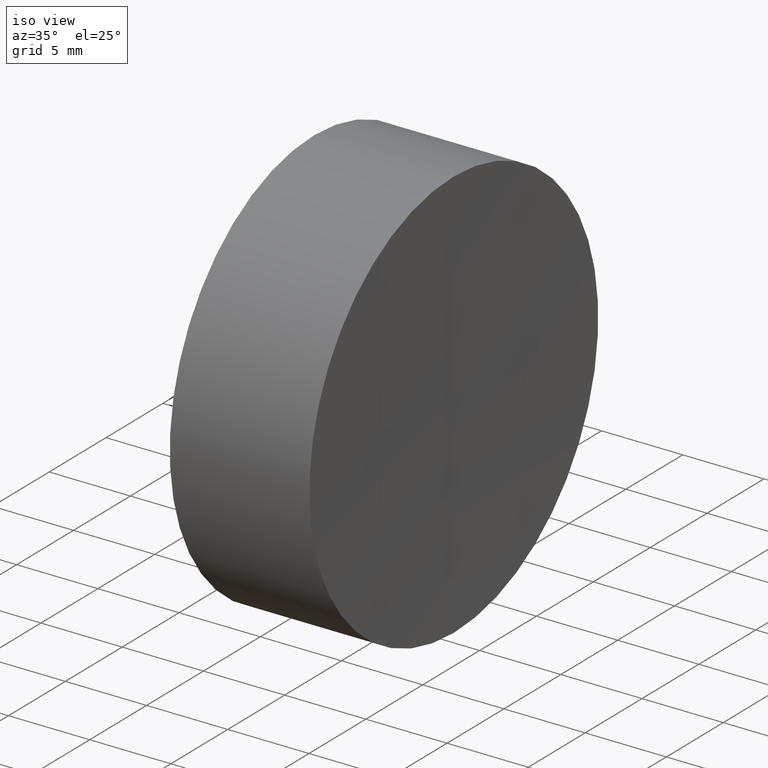
[diagram: clean part render]
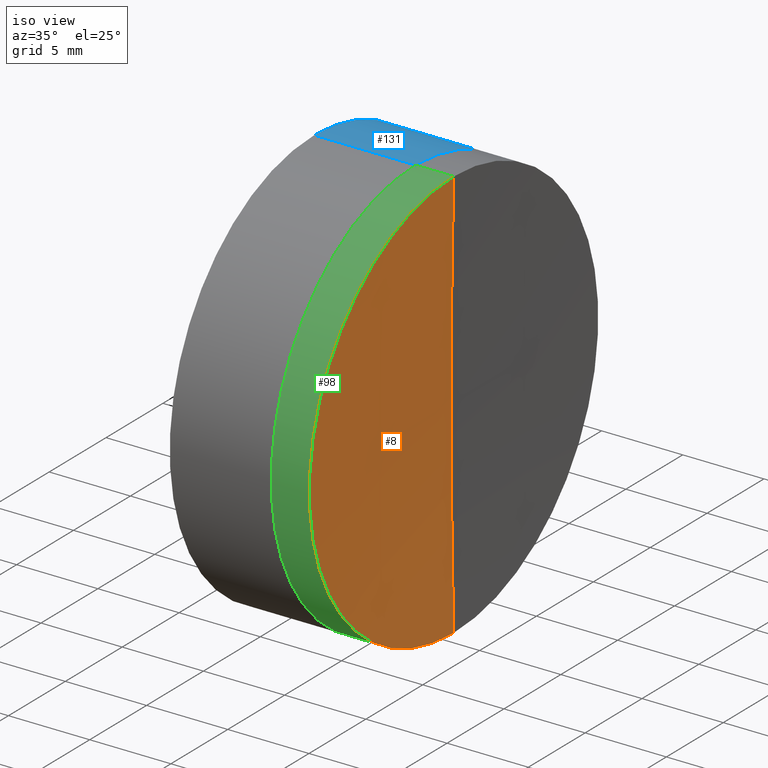
[diagram: same view with three faces highlighted in distinct colors, each labeled with its STEP entity id]
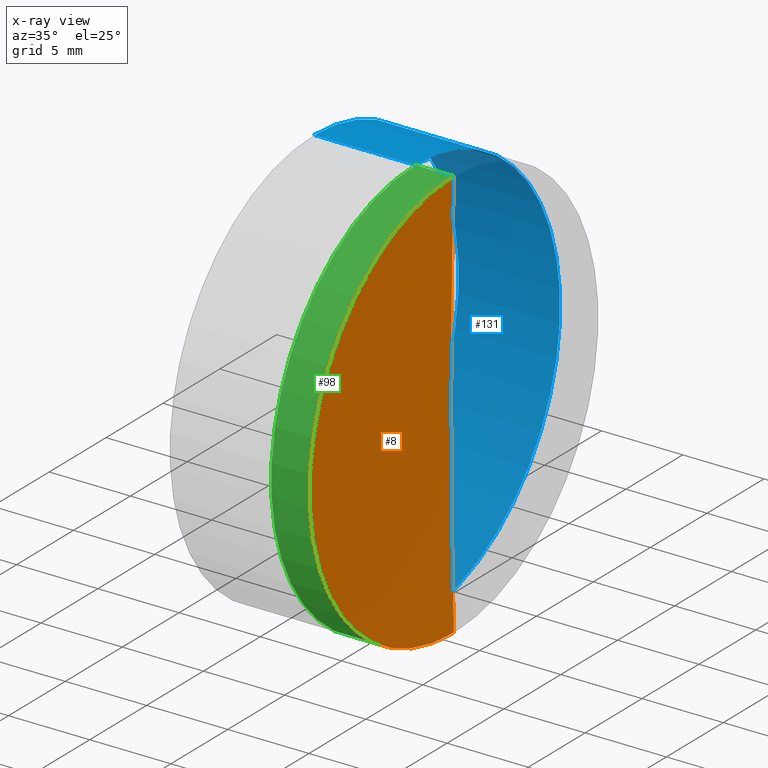
[diagram: x-ray of the same camera — body ghosted, the three highlighted faces saturated]
A machine part, iso view with three faces highlighted in distinct colors.
The next image is the same camera in x-ray (body ghosted, the three faces saturated) — at least one of them is partly hidden behind the body in this view.
Their STEP definitions:

[orange] entity #8 — the highlighted spherical surface has radius 489.8 mm.
#6 = ORIENTED_EDGE ( 'NONE', *, *, #142, .T. ) ;
#8 = ADVANCED_FACE ( 'NONE', ( #127 ), #54, .F. ) ;
#19 = CARTESIAN_POINT ( 'NONE',  ( 263.2472495702499500, 0.0000000000000000000, -2.999160011111868400E-014 ) ) ;
#31 = VERTEX_POINT ( 'NONE', #57 ) ;
#43 = EDGE_CURVE ( 'NONE', #31, #86, #150, .T. ) ;
#53 = DIRECTION ( 'NONE',  ( -0.0000000000000000000, -1.000000000000000000, -0.0000000000000000000 ) ) ;
#54 = SPHERICAL_SURFACE ( 'NONE', #183, 489.8000000000000700 ) ;
#57 = CARTESIAN_POINT ( 'NONE',  ( 263.4119260896008000, 0.0000000000000000000, 12.69999999999999900 ) ) ;
#86 = VERTEX_POINT ( 'NONE', #19 ) ;
#104 = DIRECTION ( 'NONE',  ( -1.000000000000000000, -0.0000000000000000000, -0.0000000000000000000 ) ) ;
#105 = CARTESIAN_POINT ( 'NONE',  ( 263.4119260896008000, 1.555301434917138400E-015, -12.69999999999999900 ) ) ;
#110 = CIRCLE ( 'NONE', #225, 12.69999999999999900 ) ;
#111 = VERTEX_POINT ( 'NONE', #105 ) ;
#127 = FACE_OUTER_BOUND ( 'NONE', #321, .T. ) ;
#130 = CARTESIAN_POINT ( 'NONE',  ( 753.0472495702500700, 0.0000000000000000000, 0.0000000000000000000 ) ) ;
#142 = EDGE_CURVE ( 'NONE', #111, #86, #285, .T. ) ;
#143 = DIRECTION ( 'NONE',  ( 0.0000000000000000000, 0.0000000000000000000, 1.000000000000000000 ) ) ;
#150 = CIRCLE ( 'NONE', #205, 489.8000000000000700 ) ;
#165 = DIRECTION ( 'NONE',  ( 0.0000000000000000000, 0.0000000000000000000, 1.000000000000000000 ) ) ;
#166 = DIRECTION ( 'NONE',  ( 0.0000000000000000000, 1.000000000000000000, -0.0000000000000000000 ) ) ;
#182 = DIRECTION ( 'NONE',  ( 0.0000000000000000000, 1.224646799147353200E-016, -1.000000000000000000 ) ) ;
#183 = AXIS2_PLACEMENT_3D ( 'NONE', #339, #53, #184 ) ;
#184 = DIRECTION ( 'NONE',  ( 0.0000000000000000000, 0.0000000000000000000, -1.000000000000000000 ) ) ;
#196 = CARTESIAN_POINT ( 'NONE',  ( 263.4119260896008000, 0.0000000000000000000, 0.0000000000000000000 ) ) ;
#205 = AXIS2_PLACEMENT_3D ( 'NONE', #130, #336, #182 ) ;
#216 = ORIENTED_EDGE ( 'NONE', *, *, #337, .F. ) ;
#225 = AXIS2_PLACEMENT_3D ( 'NONE', #196, #104, #165 ) ;
#262 = ORIENTED_EDGE ( 'NONE', *, *, #43, .F. ) ;
#285 = CIRCLE ( 'NONE', #329, 489.8000000000000700 ) ;
#321 = EDGE_LOOP ( 'NONE', ( #262, #216, #6 ) ) ;
#323 = CARTESIAN_POINT ( 'NONE',  ( 753.0472495702500700, 0.0000000000000000000, 0.0000000000000000000 ) ) ;
#329 = AXIS2_PLACEMENT_3D ( 'NONE', #323, #166, #143 ) ;
#336 = DIRECTION ( 'NONE',  ( 0.0000000000000000000, -1.000000000000000000, -1.224646799147353200E-016 ) ) ;
#337 = EDGE_CURVE ( 'NONE', #111, #31, #110, .T. ) ;
#339 = CARTESIAN_POINT ( 'NONE',  ( 753.0472495702500700, 0.0000000000000000000, 0.0000000000000000000 ) ) ;

[blue] entity #131 — the highlighted cylindrical surface (partial cylindrical patch) has radius 12.7 mm, axis along (-1, -0, 0).
#4 = VERTEX_POINT ( 'NONE', #312 ) ;
#24 = EDGE_CURVE ( 'NONE', #171, #146, #121, .T. ) ;
#34 = LINE ( 'NONE', #319, #101 ) ;
#73 = ORIENTED_EDGE ( 'NONE', *, *, #314, .T. ) ;
#74 = AXIS2_PLACEMENT_3D ( 'NONE', #129, #80, #309 ) ;
#80 = DIRECTION ( 'NONE',  ( -1.000000000000000000, -0.0000000000000000000, 1.836970198721029700E-016 ) ) ;
#83 = DIRECTION ( 'NONE',  ( -1.000000000000000000, -0.0000000000000000000, 1.836970198721029700E-016 ) ) ;
#101 = VECTOR ( 'NONE', #83, 1000.000000000000000 ) ;
#121 = CIRCLE ( 'NONE', #211, 12.70000000000004700 ) ;
#128 = CARTESIAN_POINT ( 'NONE',  ( -0.8160621761658015700, 0.0000000000000000000, 12.70000000000004700 ) ) ;
#129 = CARTESIAN_POINT ( 'NONE',  ( -0.8160621761658039000, 0.0000000000000000000, 0.0000000000000000000 ) ) ;
#131 = ADVANCED_FACE ( 'NONE', ( #333 ), #191, .T. ) ;
#132 = AXIS2_PLACEMENT_3D ( 'NONE', #161, #221, #347 ) ;
#133 = CARTESIAN_POINT ( 'NONE',  ( 261.0615380360216000, 0.0000000000000000000, -4.810613473023683200E-014 ) ) ;
#136 = CARTESIAN_POINT ( 'NONE',  ( 261.0615380360216000, 1.555301434917144500E-015, -12.70000000000009700 ) ) ;
#146 = VERTEX_POINT ( 'NONE', #136 ) ;
#155 = EDGE_LOOP ( 'NONE', ( #181, #73, #308, #235 ) ) ;
#161 = CARTESIAN_POINT ( 'NONE',  ( 254.8214953252485500, 0.0000000000000000000, -4.695985748039317800E-014 ) ) ;
#167 = CARTESIAN_POINT ( 'NONE',  ( 254.8214953252485500, 0.0000000000000000000, 12.69999999999999900 ) ) ;
#171 = VERTEX_POINT ( 'NONE', #226 ) ;
#173 = VERTEX_POINT ( 'NONE', #167 ) ;
#181 = ORIENTED_EDGE ( 'NONE', *, *, #24, .T. ) ;
#191 = CYLINDRICAL_SURFACE ( 'NONE', #74, 12.70000000000004700 ) ;
#206 = EDGE_CURVE ( 'NONE', #173, #4, #275, .T. ) ;
#211 = AXIS2_PLACEMENT_3D ( 'NONE', #133, #214, #266 ) ;
#214 = DIRECTION ( 'NONE',  ( -1.000000000000000000, -0.0000000000000000000, 1.836970198721029700E-016 ) ) ;
#221 = DIRECTION ( 'NONE',  ( -1.000000000000000000, -0.0000000000000000000, 1.836970198721029700E-016 ) ) ;
#226 = CARTESIAN_POINT ( 'NONE',  ( 261.0615380360216000, 0.0000000000000000000, 12.69999999999999900 ) ) ;
#234 = DIRECTION ( 'NONE',  ( -1.000000000000000000, -0.0000000000000000000, 1.836970198721029700E-016 ) ) ;
#235 = ORIENTED_EDGE ( 'NONE', *, *, #345, .F. ) ;
#236 = LINE ( 'NONE', #128, #302 ) ;
#266 = DIRECTION ( 'NONE',  ( 0.0000000000000000000, 0.0000000000000000000, 1.000000000000000000 ) ) ;
#275 = CIRCLE ( 'NONE', #132, 12.70000000000004500 ) ;
#302 = VECTOR ( 'NONE', #234, 1000.000000000000000 ) ;
#308 = ORIENTED_EDGE ( 'NONE', *, *, #206, .F. ) ;
#309 = DIRECTION ( 'NONE',  ( 1.878145495644173900E-016, 0.0000000000000000000, 1.000000000000000000 ) ) ;
#312 = CARTESIAN_POINT ( 'NONE',  ( 254.8214953252485500, 1.555301434917144200E-015, -12.70000000000005100 ) ) ;
#314 = EDGE_CURVE ( 'NONE', #146, #4, #34, .T. ) ;
#319 = CARTESIAN_POINT ( 'NONE',  ( -0.8160621761658063400, 1.555301434917144500E-015, -12.70000000000004700 ) ) ;
#333 = FACE_OUTER_BOUND ( 'NONE', #155, .T. ) ;
#345 = EDGE_CURVE ( 'NONE', #171, #173, #236, .T. ) ;
#347 = DIRECTION ( 'NONE',  ( 0.0000000000000000000, 0.0000000000000000000, 1.000000000000000000 ) ) ;

[green] entity #98 — the highlighted cylindrical surface (partial cylindrical patch) has radius 12.7 mm, axis along (-1, -0, -0).
#7 = VERTEX_POINT ( 'NONE', #134 ) ;
#23 = CARTESIAN_POINT ( 'NONE',  ( 254.8214953252485500, 0.0000000000000000000, 12.69999999999999900 ) ) ;
#25 = CARTESIAN_POINT ( 'NONE',  ( 254.8214953252485500, 0.0000000000000000000, 0.0000000000000000000 ) ) ;
#26 = DIRECTION ( 'NONE',  ( -1.000000000000000000, -0.0000000000000000000, -0.0000000000000000000 ) ) ;
#31 = VERTEX_POINT ( 'NONE', #57 ) ;
#49 = DIRECTION ( 'NONE',  ( 0.0000000000000000000, 0.0000000000000000000, 1.000000000000000000 ) ) ;
#52 = EDGE_CURVE ( 'NONE', #31, #326, #106, .T. ) ;
#57 = CARTESIAN_POINT ( 'NONE',  ( 263.4119260896008000, 0.0000000000000000000, 12.69999999999999900 ) ) ;
#61 = CARTESIAN_POINT ( 'NONE',  ( 261.0615380360216000, -1.555301434917140400E-015, 12.70000000000001700 ) ) ;
#62 = CARTESIAN_POINT ( 'NONE',  ( 254.8214953252485500, 1.555301434917138400E-015, -12.69999999999999900 ) ) ;
#92 = AXIS2_PLACEMENT_3D ( 'NONE', #138, #26, #159 ) ;
#95 = VECTOR ( 'NONE', #289, 1000.000000000000000 ) ;
#97 = ORIENTED_EDGE ( 'NONE', *, *, #52, .T. ) ;
#98 = ADVANCED_FACE ( 'NONE', ( #304 ), #338, .T. ) ;
#99 = ORIENTED_EDGE ( 'NONE', *, *, #337, .T. ) ;
#104 = DIRECTION ( 'NONE',  ( -1.000000000000000000, -0.0000000000000000000, -0.0000000000000000000 ) ) ;
#105 = CARTESIAN_POINT ( 'NONE',  ( 263.4119260896008000, 1.555301434917138400E-015, -12.69999999999999900 ) ) ;
#106 = LINE ( 'NONE', #23, #95 ) ;
#110 = CIRCLE ( 'NONE', #225, 12.69999999999999900 ) ;
#111 = VERTEX_POINT ( 'NONE', #105 ) ;
#134 = CARTESIAN_POINT ( 'NONE',  ( 261.0615380360216000, 0.0000000000000000000, -12.70000000000001700 ) ) ;
#135 = EDGE_CURVE ( 'NONE', #7, #326, #176, .T. ) ;
#137 = ORIENTED_EDGE ( 'NONE', *, *, #295, .F. ) ;
#138 = CARTESIAN_POINT ( 'NONE',  ( 261.0615380360216000, 0.0000000000000000000, 0.0000000000000000000 ) ) ;
#159 = DIRECTION ( 'NONE',  ( 0.0000000000000000000, 0.0000000000000000000, 1.000000000000000000 ) ) ;
#165 = DIRECTION ( 'NONE',  ( 0.0000000000000000000, 0.0000000000000000000, 1.000000000000000000 ) ) ;
#176 = CIRCLE ( 'NONE', #92, 12.69999999999999900 ) ;
#192 = AXIS2_PLACEMENT_3D ( 'NONE', #25, #213, #49 ) ;
#196 = CARTESIAN_POINT ( 'NONE',  ( 263.4119260896008000, 0.0000000000000000000, 0.0000000000000000000 ) ) ;
#200 = EDGE_LOOP ( 'NONE', ( #137, #99, #97, #269 ) ) ;
#213 = DIRECTION ( 'NONE',  ( -1.000000000000000000, -0.0000000000000000000, -0.0000000000000000000 ) ) ;
#225 = AXIS2_PLACEMENT_3D ( 'NONE', #196, #104, #165 ) ;
#256 = LINE ( 'NONE', #62, #267 ) ;
#267 = VECTOR ( 'NONE', #280, 1000.000000000000000 ) ;
#269 = ORIENTED_EDGE ( 'NONE', *, *, #135, .F. ) ;
#280 = DIRECTION ( 'NONE',  ( -1.000000000000000000, -0.0000000000000000000, -0.0000000000000000000 ) ) ;
#289 = DIRECTION ( 'NONE',  ( -1.000000000000000000, -0.0000000000000000000, -0.0000000000000000000 ) ) ;
#295 = EDGE_CURVE ( 'NONE', #111, #7, #256, .T. ) ;
#304 = FACE_OUTER_BOUND ( 'NONE', #200, .T. ) ;
#326 = VERTEX_POINT ( 'NONE', #61 ) ;
#337 = EDGE_CURVE ( 'NONE', #111, #31, #110, .T. ) ;
#338 = CYLINDRICAL_SURFACE ( 'NONE', #192, 12.69999999999999900 ) ;